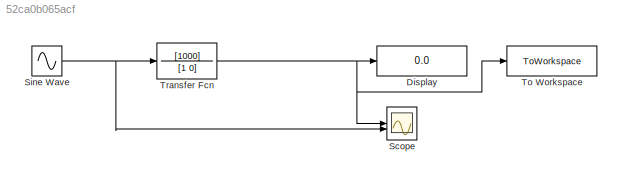
MODEL slx_52ca0b065acf
KIND model
CONFIG AbsTol = auto
CONFIG EnableMultiTasking = off
CONFIG FixedStep = auto
CONFIG MaxStep = auto
CONFIG MinStep = auto
CONFIG RelTol = 1e-3
CONFIG SampleTimeConstraint = Unconstrained
CONFIG SolverName = VariableStepAuto
CONFIG StartTime = 0.0
CONFIG StopTime = 100
BLOCK [Display] Display
  Decimation = 1
BLOCK [Scope] Scope
  Floating = off
  NumInputPorts = 2
  ScopeSpecificationString = Simulink.scopes.TimeScopeBlockCfg('CurrentConfiguration', extmgr.ConfigurationSet(extmgr.Configuration('Core','General UI',true),extmgr.Configuration('Core','Source UI',true),extmgr.Configuration('Sources','WiredSimulink',true),extmgr.Configuration('Visuals','Time Domain',true,'SerializedDisplays',{struct('MinYLimReal','-8.38788','MaxYLimReal','71.55796','YLabelReal','','MinYLimMag','0.00000','Max...<+1783ch>
BLOCK [Sin] Sine Wave
  Amplitude = 0.1
  Frequency = sque
  SampleTime = 0.1
BLOCK [ToWorkspace] To Workspace
  FixptAsFi = on
  MaxDataPoints = inf
  SampleTime = -1
  SaveFormat = Timeseries
  VariableName = result1
BLOCK [TransferFcn] Transfer Fcn
  Denominator = [1 0]
  Numerator = [1000]
NET Sine Wave:1 -> Scope:2, Transfer Fcn:1
NET Transfer Fcn:1 -> Display:1, Scope:1, To Workspace:1
note: NET lines group one-source signal fan-out (src -> all destinations, sorted); 1:1 wires keep LINE
